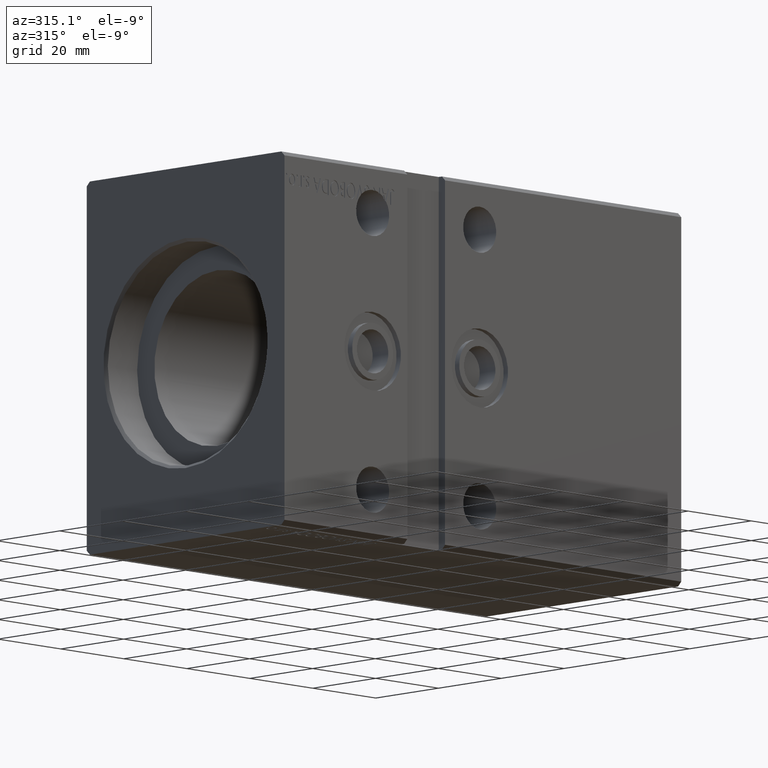
[diagram: clean part render]
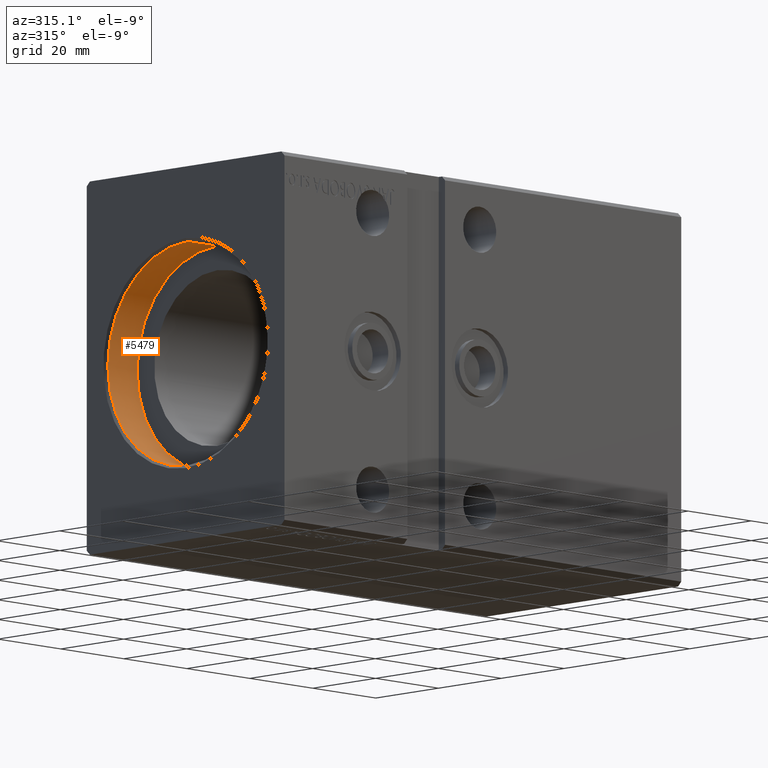
[diagram: same view with one face highlighted and labeled with its STEP entity id]
A machine part, auxiliary view. The second image highlights one B-rep face of the part: STEP entity #5479.
In plain terms, the highlighted cylindrical surface (partial cylindrical patch) has radius 25.5 mm, axis along (-1, -0, -0).
Its self-contained STEP definition (entity closure, byte-faithful):
#313 = DIRECTION ( 'NONE',  ( -1.000000000000000000, 0.000000000000000000, 0.000000000000000000 ) ) ;
#344 = DIRECTION ( 'NONE',  ( -1.000000000000000000, -0.000000000000000000, -0.000000000000000000 ) ) ;
#1504 = ORIENTED_EDGE ( 'NONE', *, *, #16159, .F. ) ;
#1965 = CIRCLE ( 'NONE', #23629, 25.50000000000000000 ) ;
#2925 = EDGE_CURVE ( 'NONE', #24958, #34788, #5676, .T. ) ;
#3037 = LINE ( 'NONE', #9211, #25003 ) ;
#4780 = ORIENTED_EDGE ( 'NONE', *, *, #33060, .T. ) ;
#5479 = ADVANCED_FACE ( 'NONE', ( #7323 ), #28523, .F. ) ;
#5676 = LINE ( 'NONE', #18226, #30449 ) ;
#6466 = CARTESIAN_POINT ( 'NONE',  ( 10.00000000000000000, 0.000000000000000000, 0.000000000000000000 ) ) ;
#6617 = CARTESIAN_POINT ( 'NONE',  ( 10.00000000000000000, 0.000000000000000000, 25.50000000000000000 ) ) ;
#7233 = ORIENTED_EDGE ( 'NONE', *, *, #15006, .T. ) ;
#7323 = FACE_OUTER_BOUND ( 'NONE', #26215, .T. ) ;
#7815 = CIRCLE ( 'NONE', #13747, 25.50000000000000000 ) ;
#9211 = CARTESIAN_POINT ( 'NONE',  ( 10.00000000000000000, 0.000000000000000000, 25.50000000000000000 ) ) ;
#12846 = DIRECTION ( 'NONE',  ( 0.000000000000000000, 0.000000000000000000, 1.000000000000000000 ) ) ;
#13747 = AXIS2_PLACEMENT_3D ( 'NONE', #20067, #16165, #22558 ) ;
#14334 = VERTEX_POINT ( 'NONE', #6617 ) ;
#15006 = EDGE_CURVE ( 'NONE', #26604, #34788, #7815, .T. ) ;
#16159 = EDGE_CURVE ( 'NONE', #14334, #24958, #1965, .T. ) ;
#16165 = DIRECTION ( 'NONE',  ( -1.000000000000000000, 0.000000000000000000, 0.000000000000000000 ) ) ;
#18226 = CARTESIAN_POINT ( 'NONE',  ( 10.00000000000000000, 3.122849337825750222E-15, -25.50000000000000000 ) ) ;
#19950 = CARTESIAN_POINT ( 'NONE',  ( 0.6999999999999922951, 3.122849337825750222E-15, -25.50000000000000000 ) ) ;
#20067 = CARTESIAN_POINT ( 'NONE',  ( 0.6999999999999922951, 0.000000000000000000, 0.000000000000000000 ) ) ;
#21773 = DIRECTION ( 'NONE',  ( -1.000000000000000000, -0.000000000000000000, -0.000000000000000000 ) ) ;
#22418 = AXIS2_PLACEMENT_3D ( 'NONE', #31604, #344, #35091 ) ;
#22558 = DIRECTION ( 'NONE',  ( 0.000000000000000000, 0.000000000000000000, -1.000000000000000000 ) ) ;
#23629 = AXIS2_PLACEMENT_3D ( 'NONE', #6466, #313, #12846 ) ;
#24958 = VERTEX_POINT ( 'NONE', #37215 ) ;
#25003 = VECTOR ( 'NONE', #21773, 1000.000000000000000 ) ;
#26215 = EDGE_LOOP ( 'NONE', ( #28270, #1504, #4780, #7233 ) ) ;
#26604 = VERTEX_POINT ( 'NONE', #34436 ) ;
#28270 = ORIENTED_EDGE ( 'NONE', *, *, #2925, .F. ) ;
#28523 = CYLINDRICAL_SURFACE ( 'NONE', #22418, 25.50000000000000000 ) ;
#30449 = VECTOR ( 'NONE', #34262, 1000.000000000000000 ) ;
#31604 = CARTESIAN_POINT ( 'NONE',  ( 10.00000000000000000, 0.000000000000000000, 0.000000000000000000 ) ) ;
#33060 = EDGE_CURVE ( 'NONE', #14334, #26604, #3037, .T. ) ;
#34262 = DIRECTION ( 'NONE',  ( -1.000000000000000000, -0.000000000000000000, -0.000000000000000000 ) ) ;
#34436 = CARTESIAN_POINT ( 'NONE',  ( 0.6999999999999922951, 0.000000000000000000, 25.50000000000000000 ) ) ;
#34788 = VERTEX_POINT ( 'NONE', #19950 ) ;
#35091 = DIRECTION ( 'NONE',  ( 0.000000000000000000, 0.000000000000000000, 1.000000000000000000 ) ) ;
#37215 = CARTESIAN_POINT ( 'NONE',  ( 10.00000000000000000, 3.122849337825750222E-15, -25.50000000000000000 ) ) ;